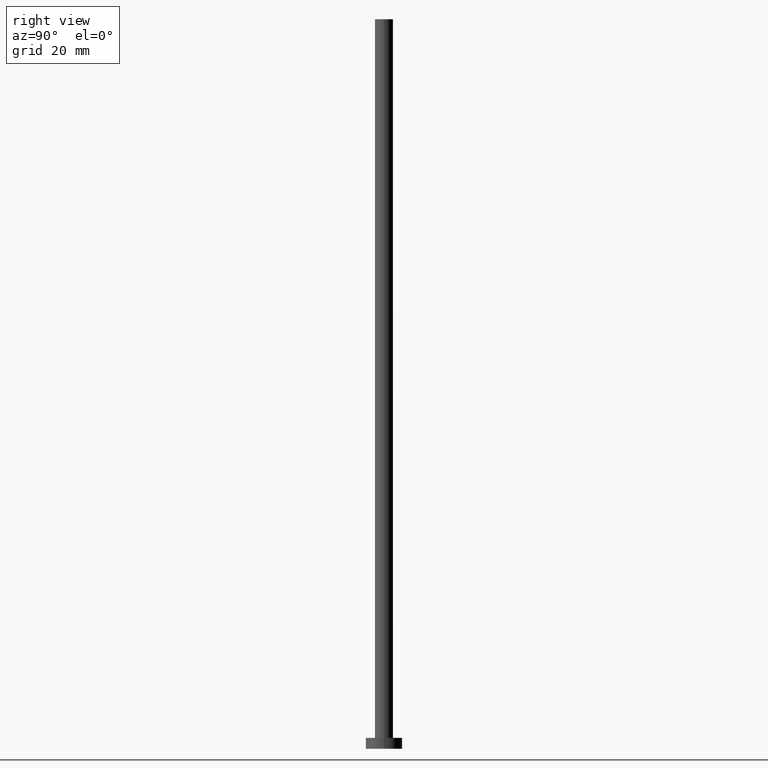
[diagram: clean part render]
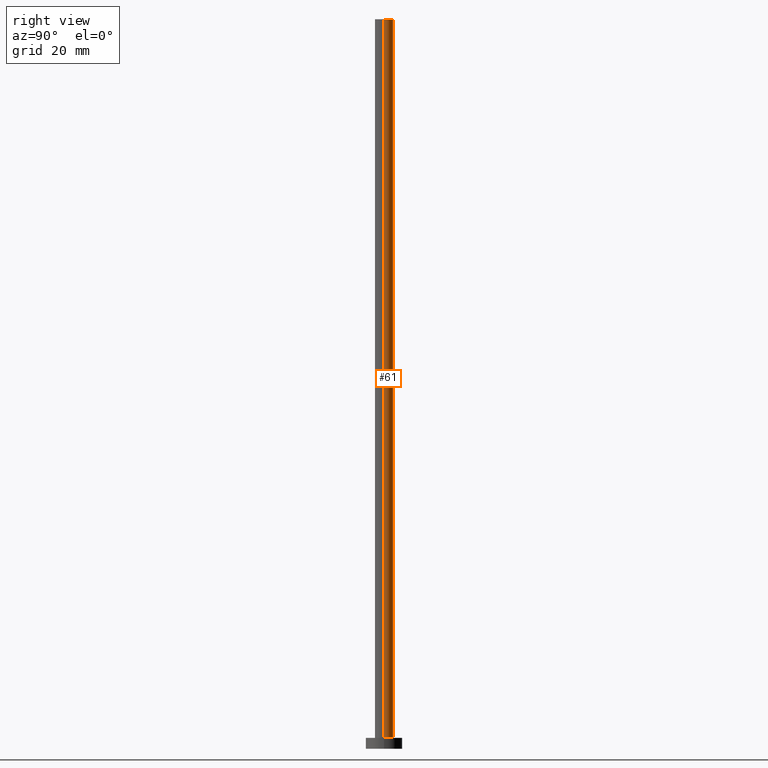
[diagram: same view with one face highlighted and labeled with its STEP entity id]
A machine part, right view. The second image highlights one B-rep face of the part: STEP entity #61.
In plain terms, the highlighted cylindrical surface (edge-blend (fillet) strip) has radius 2.5 mm, axis along (-0, -0, -1).
Its self-contained STEP definition (entity closure, byte-faithful):
#12 = CIRCLE ( 'NONE', #203, 2.500000000000000000 ) ;
#18 = VERTEX_POINT ( 'NONE', #153 ) ;
#20 = VERTEX_POINT ( 'NONE', #185 ) ;
#24 = CARTESIAN_POINT ( 'NONE',  ( 2.500000000000000000, 3.061616997868383141E-16, 200.0000000000000000 ) ) ;
#33 = CARTESIAN_POINT ( 'NONE',  ( 0.000000000000000000, 0.000000000000000000, 200.0000000000000000 ) ) ;
#42 = ORIENTED_EDGE ( 'NONE', *, *, #214, .F. ) ;
#43 = ORIENTED_EDGE ( 'NONE', *, *, #158, .F. ) ;
#56 = DIRECTION ( 'NONE',  ( 1.000000000000000000, 0.000000000000000000, 0.000000000000000000 ) ) ;
#58 = EDGE_CURVE ( 'NONE', #141, #18, #254, .T. ) ;
#59 = VECTOR ( 'NONE', #220, 1000.000000000000000 ) ;
#61 = ADVANCED_FACE ( 'NONE', ( #168 ), #163, .T. ) ;
#82 = VECTOR ( 'NONE', #184, 1000.000000000000000 ) ;
#84 = EDGE_CURVE ( 'NONE', #127, #141, #176, .T. ) ;
#88 = ORIENTED_EDGE ( 'NONE', *, *, #58, .T. ) ;
#108 = CARTESIAN_POINT ( 'NONE',  ( -2.500000000000000000, 0.000000000000000000, 200.0000000000000000 ) ) ;
#114 = AXIS2_PLACEMENT_3D ( 'NONE', #166, #145, #167 ) ;
#125 = LINE ( 'NONE', #108, #82 ) ;
#127 = VERTEX_POINT ( 'NONE', #178 ) ;
#141 = VERTEX_POINT ( 'NONE', #149 ) ;
#145 = DIRECTION ( 'NONE',  ( 0.000000000000000000, 0.000000000000000000, 1.000000000000000000 ) ) ;
#149 = CARTESIAN_POINT ( 'NONE',  ( 2.500000000000000000, 3.061616997868383141E-16, 3.000000000000000000 ) ) ;
#153 = CARTESIAN_POINT ( 'NONE',  ( -2.500000000000000000, 0.000000000000000000, 3.000000000000000000 ) ) ;
#158 = EDGE_CURVE ( 'NONE', #20, #18, #125, .T. ) ;
#163 = CYLINDRICAL_SURFACE ( 'NONE', #231, 2.500000000000000000 ) ;
#166 = CARTESIAN_POINT ( 'NONE',  ( 0.000000000000000000, 0.000000000000000000, 3.000000000000000000 ) ) ;
#167 = DIRECTION ( 'NONE',  ( 1.000000000000000000, 0.000000000000000000, 0.000000000000000000 ) ) ;
#168 = FACE_OUTER_BOUND ( 'NONE', #217, .T. ) ;
#169 = DIRECTION ( 'NONE',  ( 0.000000000000000000, 0.000000000000000000, 1.000000000000000000 ) ) ;
#176 = LINE ( 'NONE', #24, #59 ) ;
#178 = CARTESIAN_POINT ( 'NONE',  ( 2.500000000000000000, 3.061616997868383141E-16, 200.0000000000000000 ) ) ;
#184 = DIRECTION ( 'NONE',  ( -0.000000000000000000, -0.000000000000000000, -1.000000000000000000 ) ) ;
#185 = CARTESIAN_POINT ( 'NONE',  ( -2.500000000000000000, 0.000000000000000000, 200.0000000000000000 ) ) ;
#192 = CARTESIAN_POINT ( 'NONE',  ( 0.000000000000000000, 0.000000000000000000, 200.0000000000000000 ) ) ;
#197 = ORIENTED_EDGE ( 'NONE', *, *, #84, .T. ) ;
#200 = DIRECTION ( 'NONE',  ( -1.000000000000000000, 0.000000000000000000, 0.000000000000000000 ) ) ;
#203 = AXIS2_PLACEMENT_3D ( 'NONE', #192, #169, #56 ) ;
#214 = EDGE_CURVE ( 'NONE', #127, #20, #12, .T. ) ;
#217 = EDGE_LOOP ( 'NONE', ( #42, #197, #88, #43 ) ) ;
#220 = DIRECTION ( 'NONE',  ( -0.000000000000000000, -0.000000000000000000, -1.000000000000000000 ) ) ;
#231 = AXIS2_PLACEMENT_3D ( 'NONE', #33, #245, #200 ) ;
#245 = DIRECTION ( 'NONE',  ( -0.000000000000000000, -0.000000000000000000, -1.000000000000000000 ) ) ;
#254 = CIRCLE ( 'NONE', #114, 2.500000000000000000 ) ;